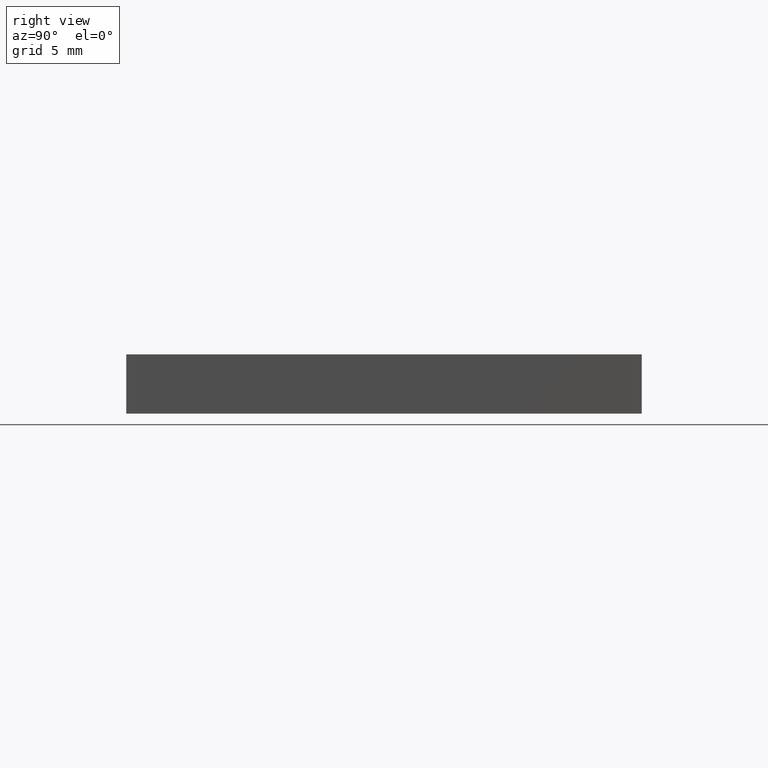
[diagram: clean part render]
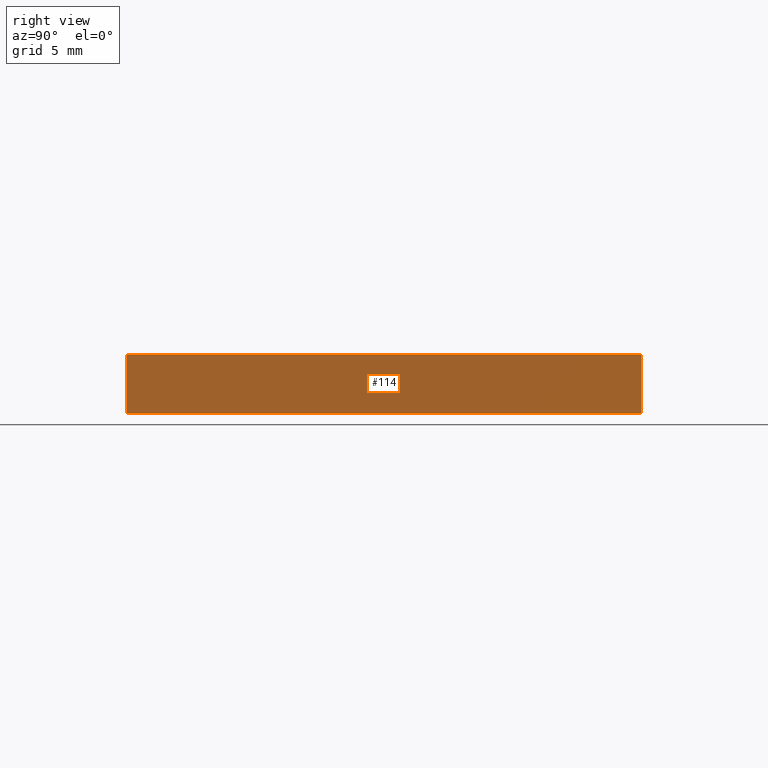
[diagram: same view with one face highlighted and labeled with its STEP entity id]
A machine part, right view. The second image highlights one B-rep face of the part: STEP entity #114.
In plain terms, the highlighted planar face has unit normal (-1, -0, 0).
Its self-contained STEP definition (entity closure, byte-faithful):
#5 = EDGE_CURVE ( 'NONE', #150, #104, #40, .T. ) ;
#9 = VECTOR ( 'NONE', #17, 1000.000000000000000 ) ;
#13 = CARTESIAN_POINT ( 'NONE',  ( 82.40998929485572000, 31.04216122301770000, 0.0000000000000000000 ) ) ;
#14 = CARTESIAN_POINT ( 'NONE',  ( 82.40998929485570600, 51.04216122301769300, 2.299999999999999800 ) ) ;
#17 = DIRECTION ( 'NONE',  ( -0.0000000000000000000, -0.0000000000000000000, -1.000000000000000000 ) ) ;
#24 = ORIENTED_EDGE ( 'NONE', *, *, #5, .T. ) ;
#28 = VERTEX_POINT ( 'NONE', #55 ) ;
#29 = DIRECTION ( 'NONE',  ( -1.000000000000000000, -6.938893903907232300E-016, 0.0000000000000000000 ) ) ;
#40 = LINE ( 'NONE', #93, #197 ) ;
#43 = FACE_OUTER_BOUND ( 'NONE', #99, .T. ) ;
#47 = VECTOR ( 'NONE', #166, 1000.000000000000000 ) ;
#51 = EDGE_CURVE ( 'NONE', #104, #163, #52, .T. ) ;
#52 = LINE ( 'NONE', #94, #47 ) ;
#55 = CARTESIAN_POINT ( 'NONE',  ( 82.40998929485570600, 51.04216122301769300, 2.299999999999999800 ) ) ;
#60 = DIRECTION ( 'NONE',  ( 6.938893903907232300E-016, -1.000000000000000000, 0.0000000000000000000 ) ) ;
#70 = AXIS2_PLACEMENT_3D ( 'NONE', #14, #29, #60 ) ;
#75 = CARTESIAN_POINT ( 'NONE',  ( 82.40998929485570600, 51.04216122301769300, 0.0000000000000000000 ) ) ;
#78 = CARTESIAN_POINT ( 'NONE',  ( 82.40998929485570600, 51.04216122301769300, 2.299999999999999800 ) ) ;
#93 = CARTESIAN_POINT ( 'NONE',  ( 82.40998929485572000, 31.04216122301770000, 2.299999999999999800 ) ) ;
#94 = CARTESIAN_POINT ( 'NONE',  ( 82.40998929485570600, 51.04216122301769300, 0.0000000000000000000 ) ) ;
#99 = EDGE_LOOP ( 'NONE', ( #191, #127, #143, #24 ) ) ;
#104 = VERTEX_POINT ( 'NONE', #13 ) ;
#106 = CARTESIAN_POINT ( 'NONE',  ( 82.40998929485570600, 51.04216122301769300, 2.299999999999999800 ) ) ;
#114 = ADVANCED_FACE ( 'NONE', ( #43 ), #121, .F. ) ;
#117 = VECTOR ( 'NONE', #183, 1000.000000000000000 ) ;
#121 = PLANE ( 'NONE',  #70 ) ;
#127 = ORIENTED_EDGE ( 'NONE', *, *, #176, .F. ) ;
#139 = LINE ( 'NONE', #106, #9 ) ;
#143 = ORIENTED_EDGE ( 'NONE', *, *, #190, .F. ) ;
#150 = VERTEX_POINT ( 'NONE', #167 ) ;
#163 = VERTEX_POINT ( 'NONE', #75 ) ;
#166 = DIRECTION ( 'NONE',  ( -6.938893903907232300E-016, 1.000000000000000000, -0.0000000000000000000 ) ) ;
#167 = CARTESIAN_POINT ( 'NONE',  ( 82.40998929485572000, 31.04216122301770000, 2.299999999999999800 ) ) ;
#174 = LINE ( 'NONE', #78, #117 ) ;
#176 = EDGE_CURVE ( 'NONE', #28, #163, #139, .T. ) ;
#183 = DIRECTION ( 'NONE',  ( -6.938893903907232300E-016, 1.000000000000000000, -0.0000000000000000000 ) ) ;
#190 = EDGE_CURVE ( 'NONE', #150, #28, #174, .T. ) ;
#191 = ORIENTED_EDGE ( 'NONE', *, *, #51, .T. ) ;
#195 = DIRECTION ( 'NONE',  ( -0.0000000000000000000, -0.0000000000000000000, -1.000000000000000000 ) ) ;
#197 = VECTOR ( 'NONE', #195, 1000.000000000000000 ) ;